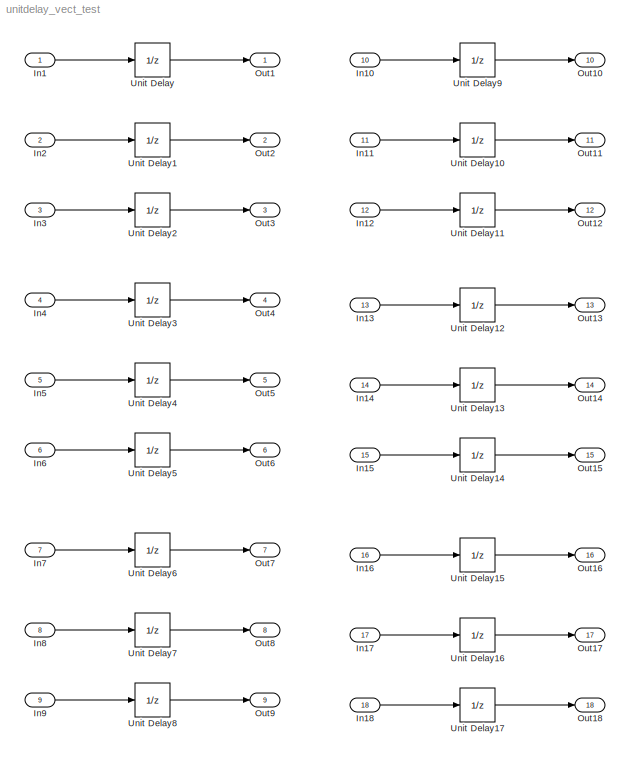
MODEL unitdelay_vect_test
KIND model
BLOCK [Inport] In1
  IconDisplay = Port number
  OutDataTypeStr = double
  PortDimensions = 2
  SID = 1
BLOCK [Inport] In10
  IconDisplay = Port number
  OutDataTypeStr = double
  Port = 10
  PortDimensions = 2
  SID = 10
BLOCK [Inport] In11
  IconDisplay = Port number
  OutDataTypeStr = double
  Port = 11
  PortDimensions = 2
  SID = 11
BLOCK [Inport] In12
  IconDisplay = Port number
  Port = 12
  PortDimensions = 2
  SID = 12
BLOCK [Inport] In13
  IconDisplay = Port number
  OutDataTypeStr = int8
  Port = 13
  PortDimensions = 2
  SID = 13
BLOCK [Inport] In14
  IconDisplay = Port number
  OutDataTypeStr = int8
  Port = 14
  PortDimensions = 2
  SID = 14
BLOCK [Inport] In15
  IconDisplay = Port number
  OutDataTypeStr = int8
  Port = 15
  PortDimensions = 2
  SID = 15
BLOCK [Inport] In16
  IconDisplay = Port number
  OutDataTypeStr = boolean
  Port = 16
  PortDimensions = 2
  SID = 16
BLOCK [Inport] In17
  IconDisplay = Port number
  OutDataTypeStr = boolean
  Port = 17
  PortDimensions = 2
  SID = 17
BLOCK [Inport] In18
  IconDisplay = Port number
  OutDataTypeStr = boolean
  Port = 18
  PortDimensions = 2
  SID = 18
BLOCK [Inport] In2
  IconDisplay = Port number
  OutDataTypeStr = double
  Port = 2
  PortDimensions = 2
  SID = 2
BLOCK [Inport] In3
  IconDisplay = Port number
  Port = 3
  PortDimensions = 2
  SID = 3
BLOCK [Inport] In4
  IconDisplay = Port number
  OutDataTypeStr = int8
  Port = 4
  PortDimensions = 2
  SID = 4
BLOCK [Inport] In5
  IconDisplay = Port number
  OutDataTypeStr = int8
  Port = 5
  PortDimensions = 2
  SID = 5
BLOCK [Inport] In6
  IconDisplay = Port number
  OutDataTypeStr = int8
  Port = 6
  PortDimensions = 2
  SID = 6
BLOCK [Inport] In7
  IconDisplay = Port number
  OutDataTypeStr = boolean
  Port = 7
  PortDimensions = 2
  SID = 7
BLOCK [Inport] In8
  IconDisplay = Port number
  OutDataTypeStr = boolean
  Port = 8
  PortDimensions = 2
  SID = 8
BLOCK [Inport] In9
  IconDisplay = Port number
  OutDataTypeStr = boolean
  Port = 9
  PortDimensions = 2
  SID = 9
BLOCK [Outport] Out1
  IconDisplay = Port number
  SID = 37
BLOCK [Outport] Out10
  IconDisplay = Port number
  Port = 10
  SID = 46
BLOCK [Outport] Out11
  IconDisplay = Port number
  Port = 11
  SID = 47
BLOCK [Outport] Out12
  IconDisplay = Port number
  Port = 12
  SID = 48
BLOCK [Outport] Out13
  IconDisplay = Port number
  Port = 13
  SID = 49
BLOCK [Outport] Out14
  IconDisplay = Port number
  Port = 14
  SID = 50
BLOCK [Outport] Out15
  IconDisplay = Port number
  Port = 15
  SID = 51
BLOCK [Outport] Out16
  IconDisplay = Port number
  Port = 16
  SID = 52
BLOCK [Outport] Out17
  IconDisplay = Port number
  Port = 17
  SID = 53
BLOCK [Outport] Out18
  IconDisplay = Port number
  Port = 18
  SID = 54
BLOCK [Outport] Out2
  IconDisplay = Port number
  Port = 2
  SID = 38
BLOCK [Outport] Out3
  IconDisplay = Port number
  Port = 3
  SID = 39
BLOCK [Outport] Out4
  IconDisplay = Port number
  Port = 4
  SID = 40
BLOCK [Outport] Out5
  IconDisplay = Port number
  Port = 5
  SID = 41
BLOCK [Outport] Out6
  IconDisplay = Port number
  Port = 6
  SID = 42
BLOCK [Outport] Out7
  IconDisplay = Port number
  Port = 7
  SID = 43
BLOCK [Outport] Out8
  IconDisplay = Port number
  Port = 8
  SID = 44
BLOCK [Outport] Out9
  IconDisplay = Port number
  Port = 9
  SID = 45
BLOCK [UnitDelay] Unit Delay
  SID = 19
BLOCK [UnitDelay] Unit Delay1
  InitialCondition = 0.0
  SID = 20
BLOCK [UnitDelay] Unit Delay10
  InitialCondition = [0 2]
  SID = 21
BLOCK [UnitDelay] Unit Delay11
  InitialCondition = [true false]
  SID = 22
BLOCK [UnitDelay] Unit Delay12
  InitialCondition = [0 2]
  SID = 23
BLOCK [UnitDelay] Unit Delay13
  InitialCondition = [0 2]
  SID = 24
BLOCK [UnitDelay] Unit Delay14
  InitialCondition = [false true]
  SID = 25
BLOCK [UnitDelay] Unit Delay15
  InitialCondition = [0 2]
  SID = 26
BLOCK [UnitDelay] Unit Delay16
  InitialCondition = [0 2]
  SID = 27
BLOCK [UnitDelay] Unit Delay17
  InitialCondition = [false true]
  SID = 28
BLOCK [UnitDelay] Unit Delay2
  InitialCondition = true
  SID = 29
BLOCK [UnitDelay] Unit Delay3
  SID = 30
BLOCK [UnitDelay] Unit Delay4
  InitialCondition = 0.0
  SID = 31
BLOCK [UnitDelay] Unit Delay5
  InitialCondition = true
  SID = 32
BLOCK [UnitDelay] Unit Delay6
  SID = 33
BLOCK [UnitDelay] Unit Delay7
  InitialCondition = 0.0
  SID = 34
BLOCK [UnitDelay] Unit Delay8
  InitialCondition = true
  SID = 35
BLOCK [UnitDelay] Unit Delay9
  InitialCondition = [0 2]
  SID = 36
LINE In10:1 -> Unit Delay9:1
LINE In11:1 -> Unit Delay10:1
LINE In12:1 -> Unit Delay11:1
LINE In13:1 -> Unit Delay12:1
LINE In14:1 -> Unit Delay13:1
LINE In15:1 -> Unit Delay14:1
LINE In16:1 -> Unit Delay15:1
LINE In17:1 -> Unit Delay16:1
LINE In18:1 -> Unit Delay17:1
LINE In1:1 -> Unit Delay:1
LINE In2:1 -> Unit Delay1:1
LINE In3:1 -> Unit Delay2:1
LINE In4:1 -> Unit Delay3:1
LINE In5:1 -> Unit Delay4:1
LINE In6:1 -> Unit Delay5:1
LINE In7:1 -> Unit Delay6:1
LINE In8:1 -> Unit Delay7:1
LINE In9:1 -> Unit Delay8:1
LINE Unit Delay10:1 -> Out11:1
LINE Unit Delay11:1 -> Out12:1
LINE Unit Delay12:1 -> Out13:1
LINE Unit Delay13:1 -> Out14:1
LINE Unit Delay14:1 -> Out15:1
LINE Unit Delay15:1 -> Out16:1
LINE Unit Delay16:1 -> Out17:1
LINE Unit Delay17:1 -> Out18:1
LINE Unit Delay1:1 -> Out2:1
LINE Unit Delay2:1 -> Out3:1
LINE Unit Delay3:1 -> Out4:1
LINE Unit Delay4:1 -> Out5:1
LINE Unit Delay5:1 -> Out6:1
LINE Unit Delay6:1 -> Out7:1
LINE Unit Delay7:1 -> Out8:1
LINE Unit Delay8:1 -> Out9:1
LINE Unit Delay9:1 -> Out10:1
LINE Unit Delay:1 -> Out1:1
